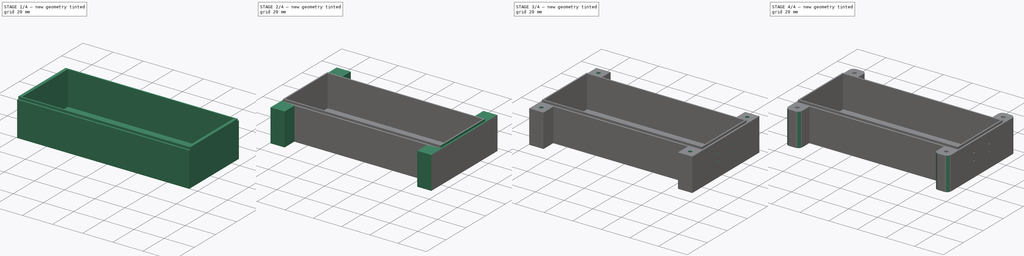
[diagram: build sequence overview — one tinted view per stage of 4, left to right]
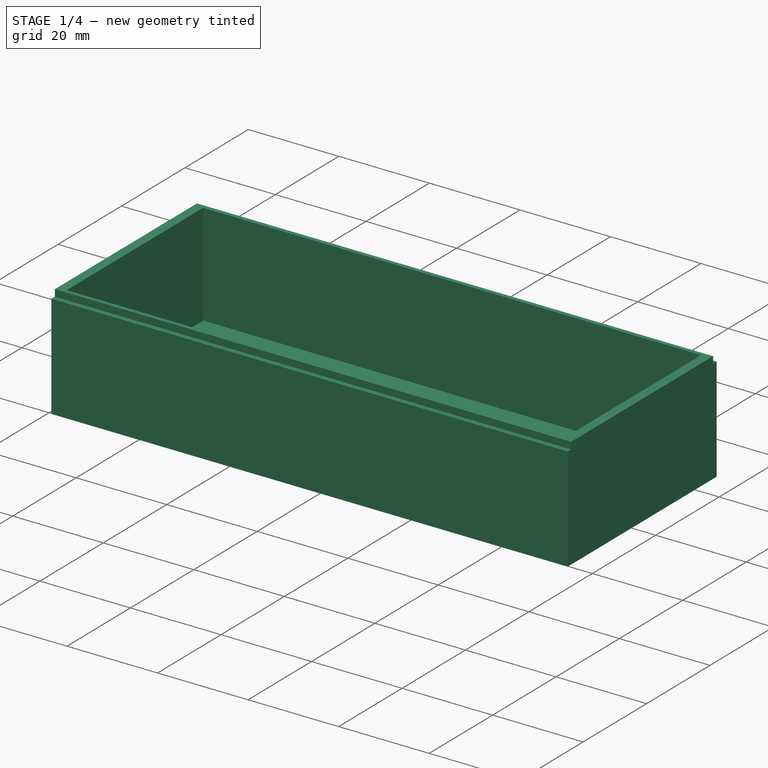
[diagram: stage 1 of 4 — iso view after this stage's code; geometry added in this stage tinted green]
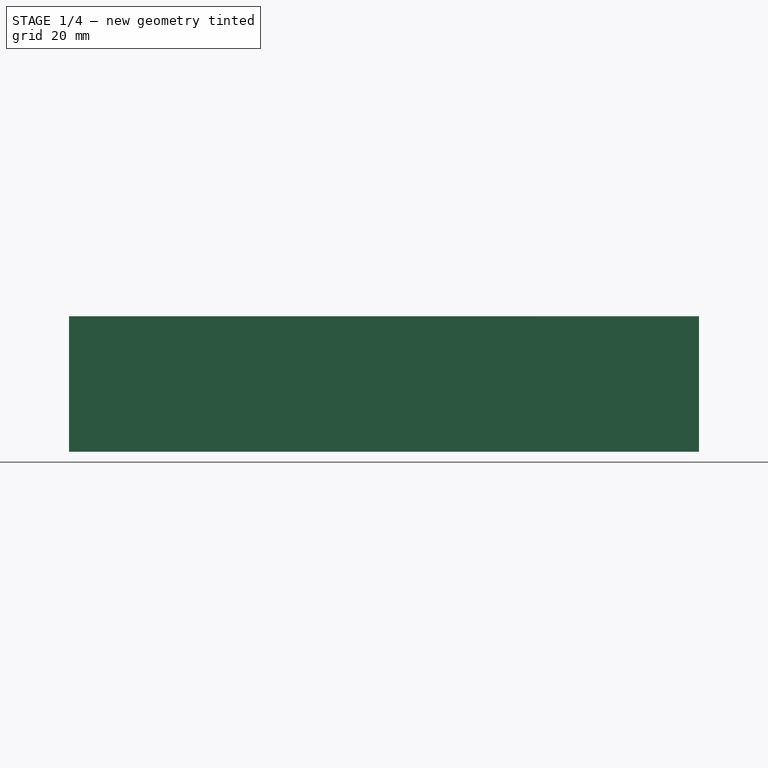
[diagram: stage 1 of 4 — front view after this stage's code; geometry added in this stage tinted green]
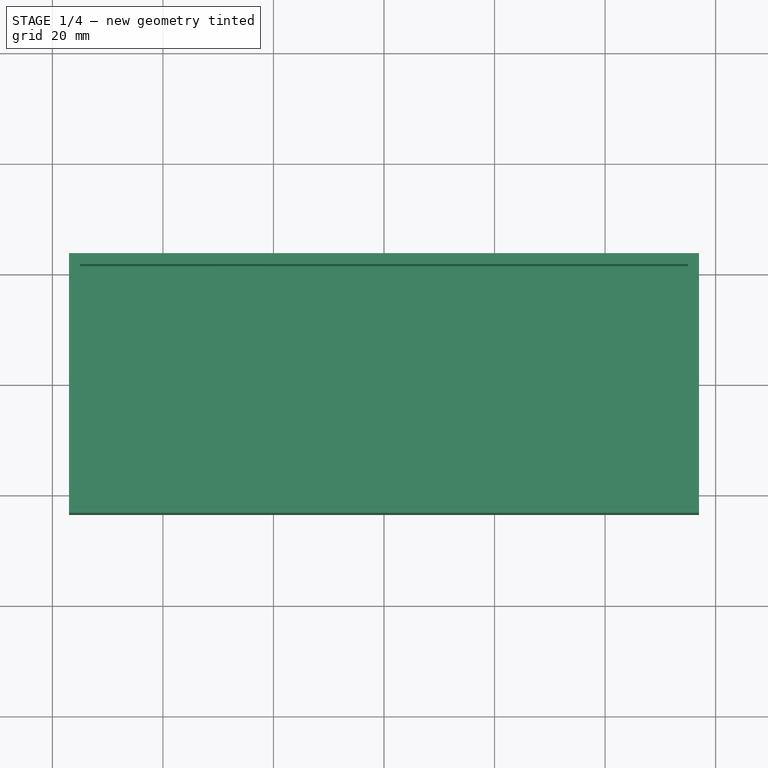
[diagram: stage 1 of 4 — top view after this stage's code; geometry added in this stage tinted green]
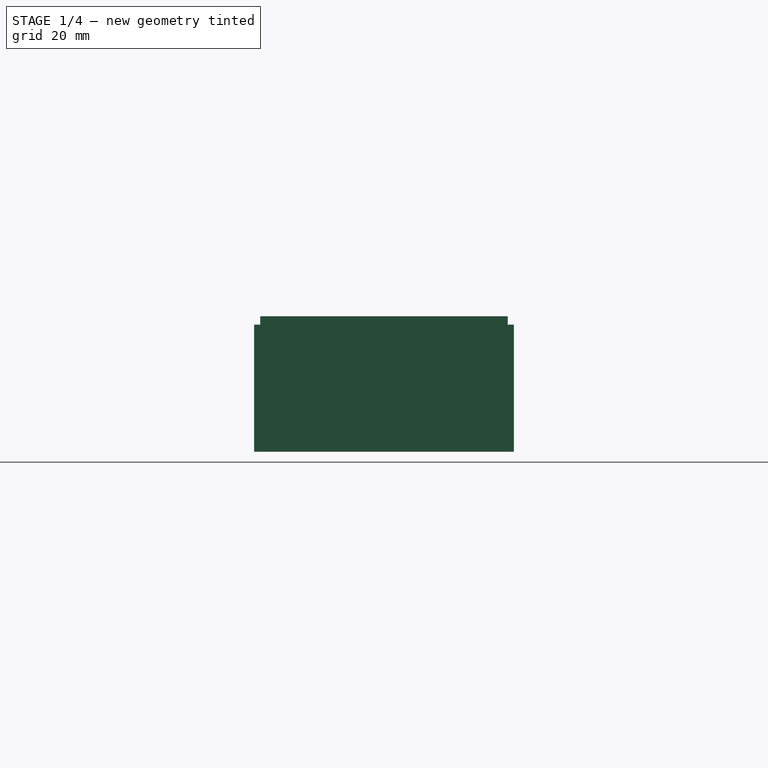
[diagram: stage 1 of 4 — right view after this stage's code; geometry added in this stage tinted green]
FCSTD DOCUMENT  (FreeCAD 1.0R38641 +678 (Git))
Label: BertheVario213_corps-v3
License: All rights reserved
LicenseURL: https://en.wikipedia.org/wiki/All_rights_reserved
objects: Sketcher::SketchObject×9, PartDesign::Pocket×5, PartDesign::Pad×4, PartDesign::Fillet×3, PartDesign::Thickness×1, PartDesign::Body×1
note: 58 computed .brp shape members not serialized (recipe doc carries the construction recipe); baked Part::Feature solids carry a one-line shape summary decoded from their .brp

FEATURE [Sketcher::SketchObject] Sketch  label="esquiise corps"
  ArcFitTolerance = 1e-06
  FullyConstrained = true
  MakeInternals = false
  sketch-geometry (4):
    g0: LineSegment StartX=-57 StartY=23.5 StartZ=0 EndX=-57 EndY=-23.5 EndZ=0
    g1: LineSegment StartX=-57 StartY=-23.5 StartZ=0 EndX=57 EndY=-23.5 EndZ=0
    g2: LineSegment StartX=57 StartY=-23.5 StartZ=0 EndX=57 EndY=23.5 EndZ=0
    g3: LineSegment StartX=57 StartY=23.5 StartZ=0 EndX=-57 EndY=23.5 EndZ=0
  constraints (11):
    c: Coincident(g0,g1)
    c: Coincident(g1,g2)
    c: Coincident(g2,g3)
    c: Coincident(g3,g0)
    c: Vertical(g0)
    c: Vertical(g2)
    c: Horizontal(g1)
    c: Horizontal(g3)
    c: DistanceY(g0,g0) = 47
    c: DistanceX(g3,g3) = 114
    c: Symmetric(g0,g2,g-1)
FEATURE [PartDesign::Pad] Pad  label="protrusion corps"
  Direction = (0,0,1)
  Length = 24.5
  Length2 = 10
  Profile = -> Sketch
  ReferenceAxis = -> Sketch [N_Axis]
  Refine = true
  Suppressed = false
  Type = 0
FEATURE [PartDesign::Thickness] Thickness  label="cavite corps"
  Base = -> Pad [Face6]
  BaseFeature = -> Pad
  Intersection = false
  Join = 0
  Mode = 0
  Refine = true
  Reversed = true
  SupportTransform = false
  Suppressed = false
  Value = 2
FEATURE [Sketcher::SketchObject] Sketch001  label="esquisse rebord long"
  ArcFitTolerance = 1e-06
  AttachmentSupport = -> [Thickness]
  ExternalGeometry = -> [Thickness]
  FullyConstrained = true
  MakeInternals = false
  MapMode = 5
  Placement = pos=(0,0,24.5) rot=(0,0,1;0rad)
  sketch-geometry (8):
    g0: LineSegment StartX=-57 StartY=-22.4 StartZ=0 EndX=-57 EndY=-23.5 EndZ=0
    g1: LineSegment StartX=-57 StartY=-23.5 StartZ=0 EndX=57 EndY=-23.5 EndZ=0
    g2: LineSegment StartX=57 StartY=-23.5 StartZ=0 EndX=57 EndY=-22.4 EndZ=0
    g3: LineSegment StartX=57 StartY=-22.4 StartZ=0 EndX=-57 EndY=-22.4 EndZ=0
    g4: LineSegment StartX=-57 StartY=23.5 StartZ=0 EndX=-57 EndY=22.4 EndZ=0
    g5: LineSegment StartX=-57 StartY=22.4 StartZ=0 EndX=57 EndY=22.4 EndZ=0
    g6: LineSegment StartX=57 StartY=22.4 StartZ=0 EndX=57 EndY=23.5 EndZ=0
    g7: LineSegment StartX=57 StartY=23.5 StartZ=0 EndX=-57 EndY=23.5 EndZ=0
  constraints (22):
    c: Coincident(g0,g1)
    c: Coincident(g1,g2)
    c: Coincident(g2,g3)
    c: Coincident(g3,g0)
    c: Vertical(g0)
    c: Vertical(g2)
    c: Horizontal(g1)
    c: Horizontal(g3)
    c: DistanceY(g2,g2) = 1.1
    c: PointOnObject(g0,g-6)
    c: Coincident(g1,g-5)
    c: Coincident(g4,g5)
    c: Coincident(g5,g6)
    c: Coincident(g6,g7)
    c: Coincident(g7,g4)
    c: Vertical(g4)
    c: Vertical(g6)
    c: Horizontal(g5)
    c: Horizontal(g7)
    c: Equal(g3,g5)
    c: Equal(g4,g0)
    c: Coincident(g-6,g4)
FEATURE [PartDesign::Pocket] Pocket  label="protrusion rebord long"
  BaseFeature = -> Thickness
  Direction = (0,0,-1)
  Length = 1.5
  Length2 = 5
  Profile = -> Sketch001
  ReferenceAxis = -> Sketch001 [N_Axis]
  Refine = true
  Suppressed = false
  Type = 0
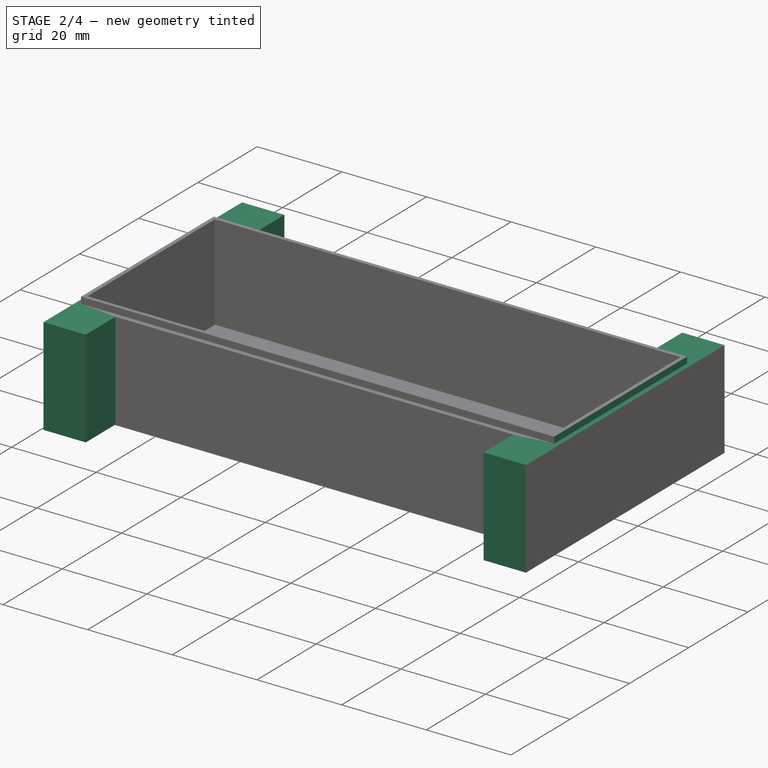
[diagram: stage 2 of 4 — iso view after this stage's code; geometry added in this stage tinted green]
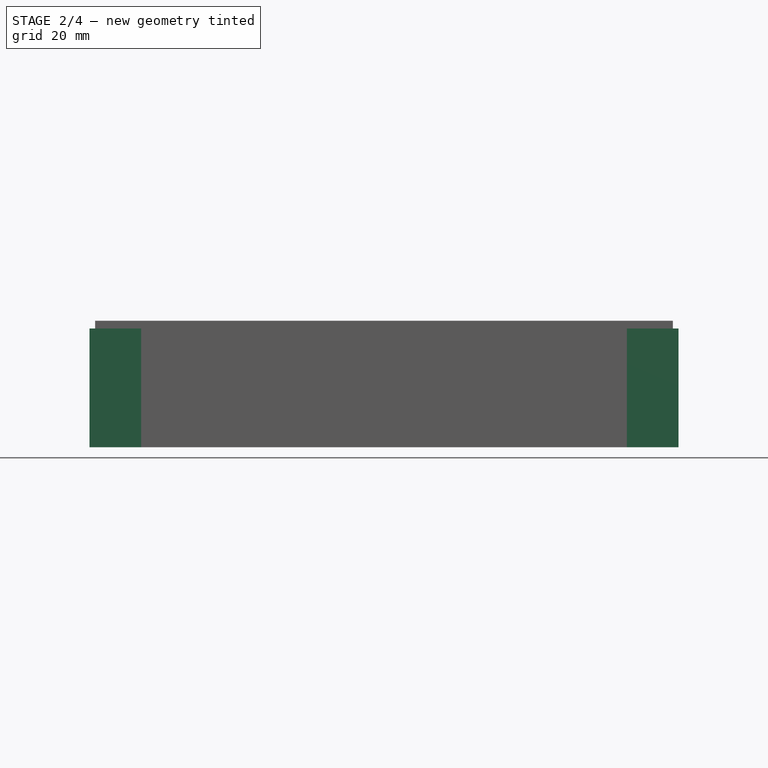
[diagram: stage 2 of 4 — front view after this stage's code; geometry added in this stage tinted green]
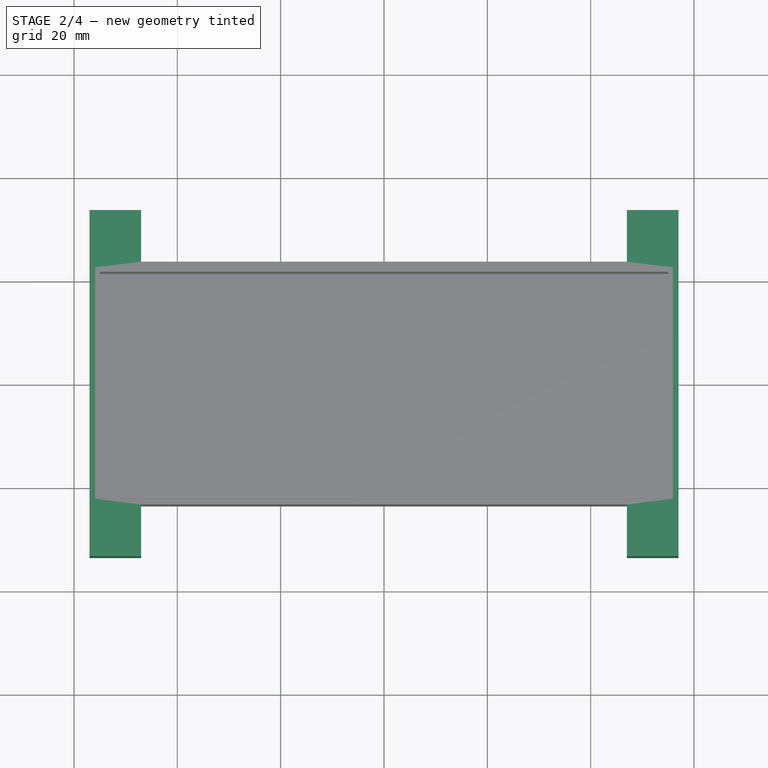
[diagram: stage 2 of 4 — top view after this stage's code; geometry added in this stage tinted green]
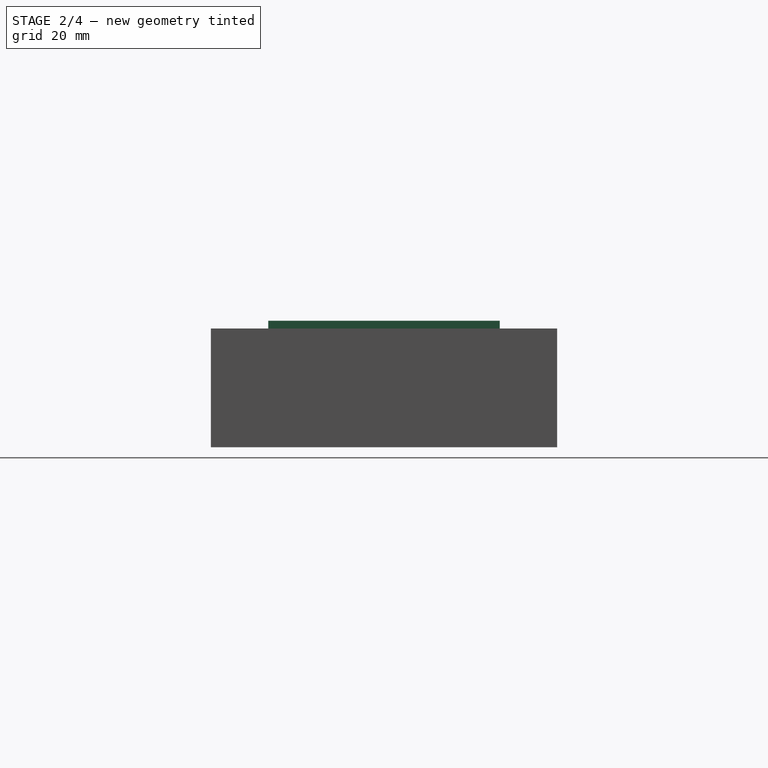
[diagram: stage 2 of 4 — right view after this stage's code; geometry added in this stage tinted green]
FEATURE [Sketcher::SketchObject] Sketch002  label="esquisse rebord court"
  ArcFitTolerance = 1e-06
  AttachmentSupport = -> [Pocket]
  ExternalGeometry = -> [Pocket]
  FullyConstrained = true
  MakeInternals = false
  MapMode = 5
  Placement = pos=(0,0,24.5) rot=(0,0,1;0rad)
  sketch-geometry (8):
    g0: LineSegment StartX=55.9 StartY=23.5 StartZ=0 EndX=55.9 EndY=-23.5 EndZ=0
    g1: LineSegment StartX=55.9 StartY=-23.5 StartZ=0 EndX=57 EndY=-23.5 EndZ=0
    g2: LineSegment StartX=57 StartY=-23.5 StartZ=0 EndX=57 EndY=23.5 EndZ=0
    g3: LineSegment StartX=57 StartY=23.5 StartZ=0 EndX=55.9 EndY=23.5 EndZ=0
    g4: LineSegment StartX=-57 StartY=23.5 StartZ=0 EndX=-57 EndY=-23.5 EndZ=0
    g5: LineSegment StartX=-57 StartY=-23.5 StartZ=0 EndX=-55.9 EndY=-23.5 EndZ=0
    g6: LineSegment StartX=-55.9 StartY=-23.5 StartZ=0 EndX=-55.9 EndY=23.5 EndZ=0
    g7: LineSegment StartX=-55.9 StartY=23.5 StartZ=0 EndX=-57 EndY=23.5 EndZ=0
  constraints (22):
    c: Coincident(g0,g1)
    c: Coincident(g1,g2)
    c: Coincident(g2,g3)
    c: Coincident(g3,g0)
    c: Vertical(g0)
    c: Vertical(g2)
    c: Horizontal(g1)
    c: Horizontal(g3)
    c: Coincident(g4,g5)
    c: Coincident(g5,g6)
    c: Coincident(g6,g7)
    c: Coincident(g7,g4)
    c: Vertical(g4)
    c: Vertical(g6)
    c: Horizontal(g5)
    c: Horizontal(g7)
    c: Equal(g7,g3)
    c: Equal(g2,g6)
    c: DistanceX(g3,g3) = 1.1
    c: DistanceY(g0,g0) = 47
    c: Coincident(g1,g-5)
    c: Coincident(g4,g-6)
FEATURE [PartDesign::Pocket] Pocket001  label="protrusion rebord court"
  BaseFeature = -> Pocket
  Direction = (0,0,-1)
  Length = 1.5
  Length2 = 5
  Profile = -> Sketch002
  ReferenceAxis = -> Sketch002 [N_Axis]
  Refine = true
  Suppressed = false
  Type = 0
FEATURE [Sketcher::SketchObject] Sketch003  label="esquisse embase vis 1-2"
  ArcFitTolerance = 1e-06
  AttachmentSupport = -> [Pocket001]
  ExternalGeometry = -> [Pocket001]
  FullyConstrained = true
  MakeInternals = false
  MapMode = 5
  Placement = pos=(0,23.5,0) rot=(0,0.707107,0.707107;3.14159rad)
  sketch-geometry (8):
    g0: LineSegment StartX=-57 StartY=23 StartZ=0 EndX=-57 EndY=0 EndZ=0
    g1: LineSegment StartX=-57 StartY=0 StartZ=0 EndX=-47 EndY=0 EndZ=0
    g2: LineSegment StartX=-47 StartY=0 StartZ=0 EndX=-47 EndY=23 EndZ=0
    g3: LineSegment StartX=-47 StartY=23 StartZ=0 EndX=-57 EndY=23 EndZ=0
    g4: LineSegment StartX=47 StartY=23 StartZ=0 EndX=47 EndY=0 EndZ=0
    g5: LineSegment StartX=47 StartY=0 StartZ=0 EndX=57 EndY=0 EndZ=0
    g6: LineSegment StartX=57 StartY=0 StartZ=0 EndX=57 EndY=23 EndZ=0
    g7: LineSegment StartX=57 StartY=23 StartZ=0 EndX=47 EndY=23 EndZ=0
  constraints (22):
    c: Coincident(g0,g1)
    c: Coincident(g1,g2)
    c: Coincident(g2,g3)
    c: Coincident(g3,g0)
    c: Vertical(g0)
    c: Vertical(g2)
    c: Horizontal(g1)
    c: Horizontal(g3)
    c: Coincident(g4,g5)
    c: Coincident(g5,g6)
    c: Coincident(g6,g7)
    c: Coincident(g7,g4)
    c: Vertical(g4)
    c: Vertical(g6)
    c: Horizontal(g5)
    c: Horizontal(g7)
    c: Coincident(g0,g-4)
    c: Coincident(g5,g-3)
    c: Equal(g7,g3)
    c: Equal(g2,g4)
    c: DistanceY(g4,g4) = 23
    c: DistanceX(g7,g7) = 10
FEATURE [PartDesign::Pad] Pad001  label="protrusion embase vis 1-2"
  BaseFeature = -> Pocket001
  Direction = (0,1,-2e-16)
  Length = 10
  Length2 = 10
  Profile = -> Sketch003
  ReferenceAxis = -> Sketch003 [N_Axis]
  Refine = true
  Suppressed = false
  Type = 0
FEATURE [Sketcher::SketchObject] Sketch004  label="esquisse embase vis 3-4"
  ArcFitTolerance = 1e-06
  AttachmentSupport = -> [Pad001]
  ExternalGeometry = -> [Pad001]
  FullyConstrained = true
  MakeInternals = false
  MapMode = 5
  Placement = pos=(0,-23.5,0) rot=(1,0,0;1.5708rad)
  sketch-geometry (8):
    g0: LineSegment StartX=-57 StartY=23 StartZ=0 EndX=-57 EndY=0 EndZ=0
    g1: LineSegment StartX=-57 StartY=0 StartZ=0 EndX=-47 EndY=0 EndZ=0
    g2: LineSegment StartX=-47 StartY=0 StartZ=0 EndX=-47 EndY=23 EndZ=0
    g3: LineSegment StartX=-47 StartY=23 StartZ=0 EndX=-57 EndY=23 EndZ=0
    g4: LineSegment StartX=47 StartY=23 StartZ=0 EndX=47 EndY=0 EndZ=0
    g5: LineSegment StartX=47 StartY=0 StartZ=0 EndX=57 EndY=0 EndZ=0
    g6: LineSegment StartX=57 StartY=0 StartZ=0 EndX=57 EndY=23 EndZ=0
    g7: LineSegment StartX=57 StartY=23 StartZ=0 EndX=47 EndY=23 EndZ=0
  constraints (22):
    c: Coincident(g0,g1)
    c: Coincident(g1,g2)
    c: Coincident(g2,g3)
    c: Coincident(g3,g0)
    c: Vertical(g0)
    c: Vertical(g2)
    c: Horizontal(g1)
    c: Horizontal(g3)
    c: Coincident(g4,g5)
    c: Coincident(g5,g6)
    c: Coincident(g6,g7)
    c: Coincident(g7,g4)
    c: Vertical(g4)
    c: Vertical(g6)
    c: Horizontal(g5)
    c: Horizontal(g7)
    c: Equal(g3,g7)
    c: Equal(g2,g4)
    c: Distance(g3,g3) = 10
    c: DistanceY(g2,g2) = 23
    c: Coincident(g0,g-4)
    c: Coincident(g5,g-3)
FEATURE [PartDesign::Pad] Pad002  label="protrusion embase vis 3-4"
  BaseFeature = -> Pad001
  Direction = (0,-1,2e-16)
  Length = 10
  Length2 = 10
  Profile = -> Sketch004
  ReferenceAxis = -> Sketch004 [N_Axis]
  Refine = true
  Suppressed = false
  Type = 0
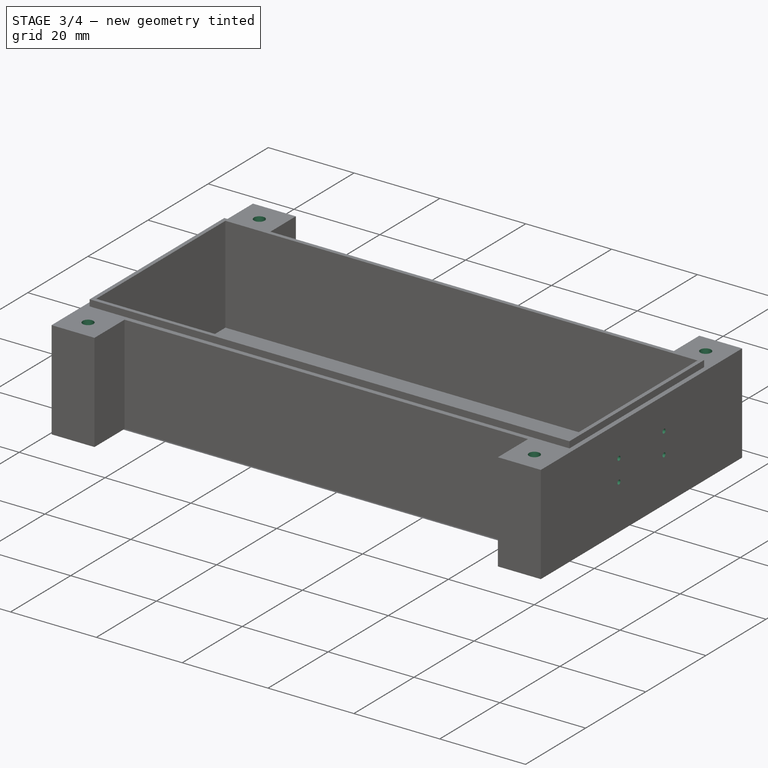
[diagram: stage 3 of 4 — iso view after this stage's code; geometry added in this stage tinted green]
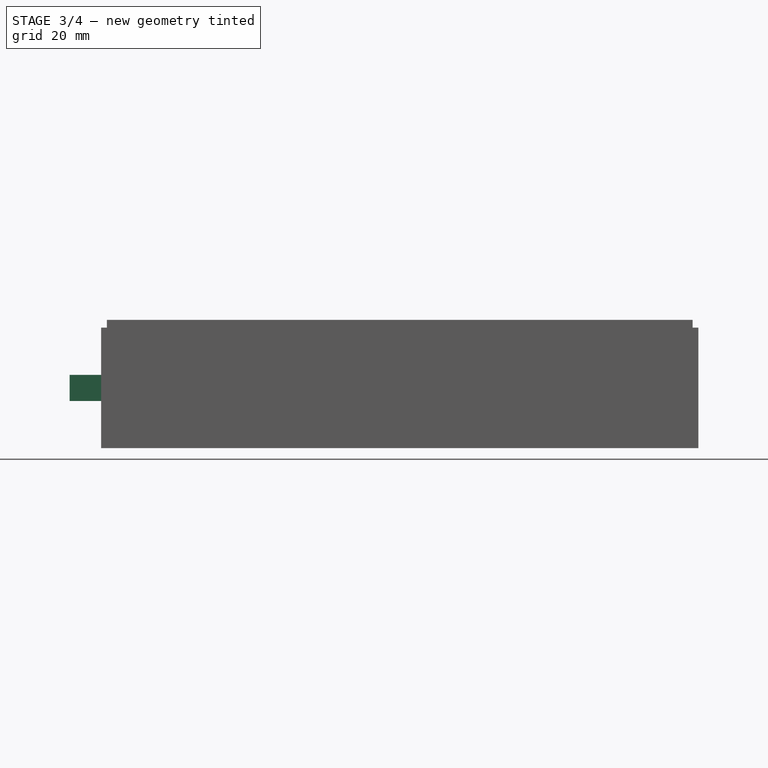
[diagram: stage 3 of 4 — front view after this stage's code; geometry added in this stage tinted green]
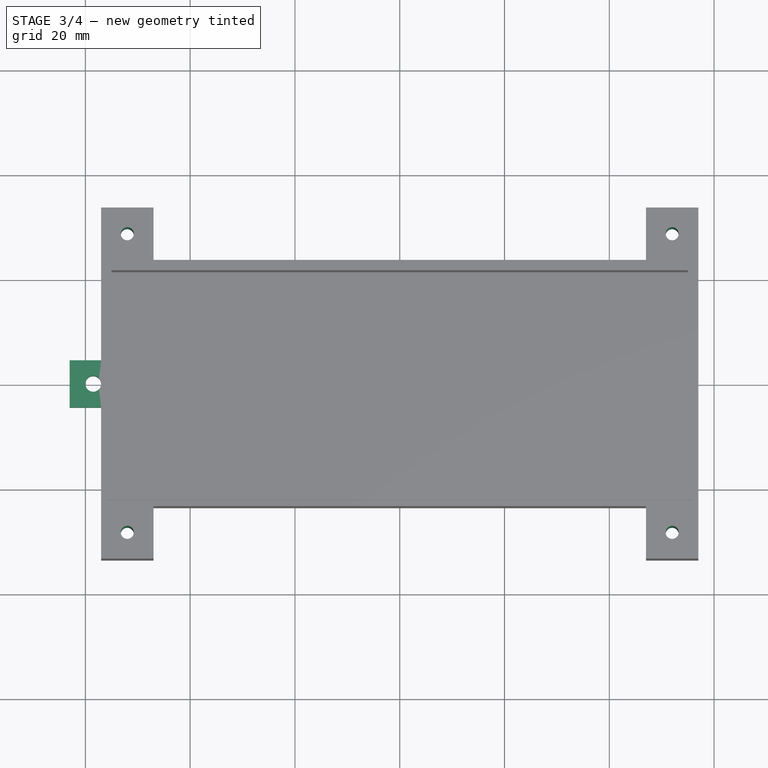
[diagram: stage 3 of 4 — top view after this stage's code; geometry added in this stage tinted green]
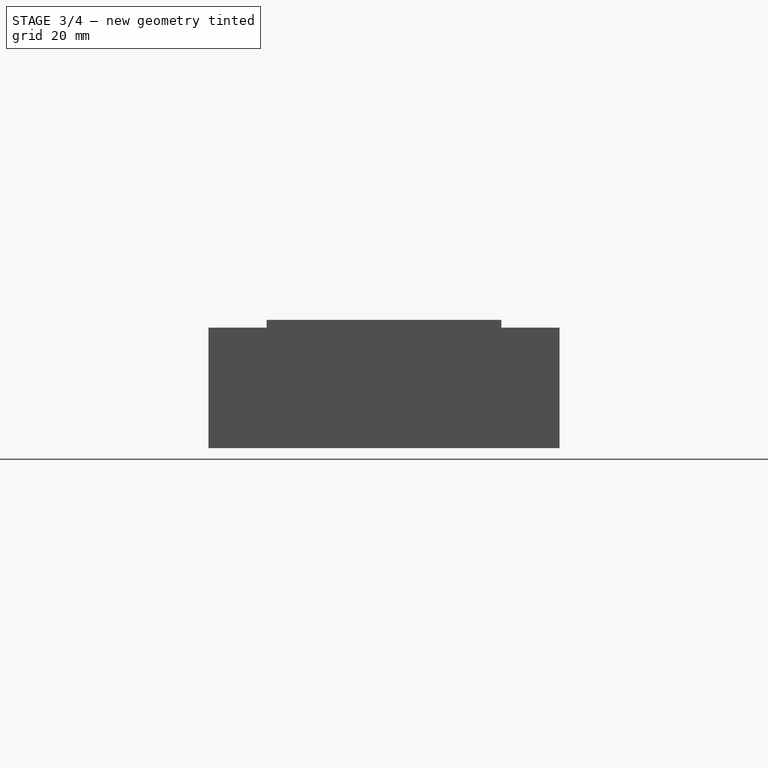
[diagram: stage 3 of 4 — right view after this stage's code; geometry added in this stage tinted green]
FEATURE [Sketcher::SketchObject] Sketch005  label="esquisse trou vis"
  ArcFitTolerance = 1e-06
  AttachmentSupport = -> [Pad002]
  ExternalGeometry = -> [Pad002]
  FullyConstrained = true
  MakeInternals = false
  MapMode = 5
  Placement = pos=(1.1263e-12,-2.3255e-12,23) rot=(0,0,1;0rad)
  sketch-geometry (4):
    g0: Circle CenterX=-52 CenterY=28.5 CenterZ=0 NormalX=0 NormalY=0 NormalZ=1 AngleXU=0 Radius=1.25
    g1: Circle CenterX=52 CenterY=28.5 CenterZ=0 NormalX=0 NormalY=0 NormalZ=1 AngleXU=0 Radius=1.25
    g2: Circle CenterX=52 CenterY=-28.5 CenterZ=0 NormalX=0 NormalY=0 NormalZ=1 AngleXU=0 Radius=1.25
    g3: Circle CenterX=-52 CenterY=-28.5 CenterZ=0 NormalX=0 NormalY=0 NormalZ=1 AngleXU=0 Radius=1.25
  constraints (8):
    c: Equal(g0,g1)
    c: Equal(g2,g3)
    c: Equal(g2,g1)
    c: Diameter(g0) = 2.5
    c: Symmetric(g-9,g-10,g1)
    c: Symmetric(g-7,g-8,g2)
    c: Symmetric(g-5,g-6,g3)
    c: Symmetric(g-4,g-3,g0)
FEATURE [PartDesign::Pocket] Pocket002  label="trou vis"
  BaseFeature = -> Pad002
  Direction = (-4.9e-14,1.011e-13,-1)
  Length = 23
  Length2 = 5
  Profile = -> Sketch005
  ReferenceAxis = -> Sketch005 [N_Axis]
  Refine = true
  Suppressed = false
  Type = 0
FEATURE [Sketcher::SketchObject] Sketch006  label="esquisse trou hp"
  ArcFitTolerance = 1e-06
  AttachmentSupport = -> [Pocket002]
  ExternalGeometry = -> [Pocket002]
  FullyConstrained = true
  MakeInternals = false
  MapMode = 5
  Placement = pos=(57,0,0) rot=(0.57735,0.57735,0.57735;2.0944rad)
  sketch-geometry (5):
    g0: Circle CenterX=7.5 CenterY=10.5 CenterZ=0 NormalX=0 NormalY=0 NormalZ=1 AngleXU=0 Radius=0.5
    g1: Circle CenterX=7.5 CenterY=15.5 CenterZ=0 NormalX=0 NormalY=0 NormalZ=1 AngleXU=0 Radius=0.5
    g2: Circle CenterX=-7.5 CenterY=10.5 CenterZ=0 NormalX=0 NormalY=0 NormalZ=1 AngleXU=0 Radius=0.5
    g3: Circle CenterX=-7.5 CenterY=15.5 CenterZ=0 NormalX=0 NormalY=0 NormalZ=1 AngleXU=0 Radius=0.5
    g4: GeomPoint X=0 Y=13 Z=0
  constraints (12):
    c: Equal(g3,g0)
    c: Equal(g0,g1)
    c: Equal(g1,g2)
    c: Diameter(g3) = 1
    c: DistanceX(g3,g1) = 15
    c: Symmetric(g1,g2,g4)
    c: Symmetric(g3,g0,g4)
    c: DistanceY(g-1,g4) = 13
    c: DistanceY(g0,g1) = 5
    c: DistanceX(g4,g-1) = 0
    c: DistanceX(g0,g1) = 0
    c: DistanceY(g0,g2) = 0
FEATURE [PartDesign::Pocket] Pocket003  label="trou hp"
  BaseFeature = -> Pocket002
  Direction = (-1,0,0)
  Length = 2
  Length2 = 5
  Profile = -> Sketch006
  ReferenceAxis = -> Sketch006 [N_Axis]
  Refine = true
  Suppressed = false
  Type = 0
FEATURE [Sketcher::SketchObject] Sketch007  label="esquisse attache"
  ArcFitTolerance = 1e-06
  AttachmentSupport = -> [Pocket003]
  ExternalGeometry = -> [Pocket003]
  FullyConstrained = true
  MakeInternals = false
  MapMode = 5
  Placement = pos=(-57,0,0) rot=(0.57735,-0.57735,-0.57735;2.0944rad)
  sketch-geometry (5):
    g0: LineSegment StartX=-4.5 StartY=14 StartZ=0 EndX=-4.5 EndY=9 EndZ=0
    g1: LineSegment StartX=-4.5 StartY=9 StartZ=0 EndX=4.5 EndY=9 EndZ=0
    g2: LineSegment StartX=4.5 StartY=9 StartZ=0 EndX=4.5 EndY=14 EndZ=0
    g3: LineSegment StartX=4.5 StartY=14 StartZ=0 EndX=-4.5 EndY=14 EndZ=0
    g4: GeomPoint X=9e-16 Y=11.5 Z=0
  constraints (12):
    c: Coincident(g0,g1)
    c: Coincident(g1,g2)
    c: Coincident(g2,g3)
    c: Coincident(g3,g0)
    c: Vertical(g0)
    c: Vertical(g2)
    c: Horizontal(g1)
    c: Horizontal(g3)
    c: Symmetric(g-3,g-4,g4)
    c: Symmetric(g0,g1,g4)
    c: DistanceY(g2,g2) = 5
    c: DistanceX(g3,g3) = 9
FEATURE [PartDesign::Pad] Pad003  label="protrusion attache"
  BaseFeature = -> Pocket003
  Direction = (-1,0,0)
  Length = 6
  Length2 = 10
  Profile = -> Sketch007
  ReferenceAxis = -> Sketch007 [N_Axis]
  Refine = true
  Suppressed = false
  Type = 0
FEATURE [Sketcher::SketchObject] Sketch009  label="equisse trou attache"
  ArcFitTolerance = 1e-06
  AttachmentSupport = -> [Pad003]
  ExternalGeometry = -> [Pad003]
  FullyConstrained = true
  MakeInternals = false
  MapMode = 5
  Placement = pos=(0,0,14) rot=(0,0,1;0rad)
  sketch-geometry (2):
    g0: GeomPoint X=-60 Y=6e-16 Z=0
    g1: Circle CenterX=-58.5 CenterY=0 CenterZ=0 NormalX=0 NormalY=0 NormalZ=1 AngleXU=0 Radius=1.5
  constraints (5):
    c: Symmetric(g-4,g-3,g0)
    c: Diameter(g1) = 3
    c: DistanceY(g1) = 0
    c: DistanceX(g-3) = -57
    c: DistanceX(g1,g-3) = 1.5
FEATURE [PartDesign::Pocket] Pocket004  label="trou attache"
  BaseFeature = -> Pad003
  Direction = (0,0,-1)
  Length = 5
  Length2 = 5
  Profile = -> Sketch009
  ReferenceAxis = -> Sketch009 [N_Axis]
  Refine = true
  Suppressed = false
  Type = 0
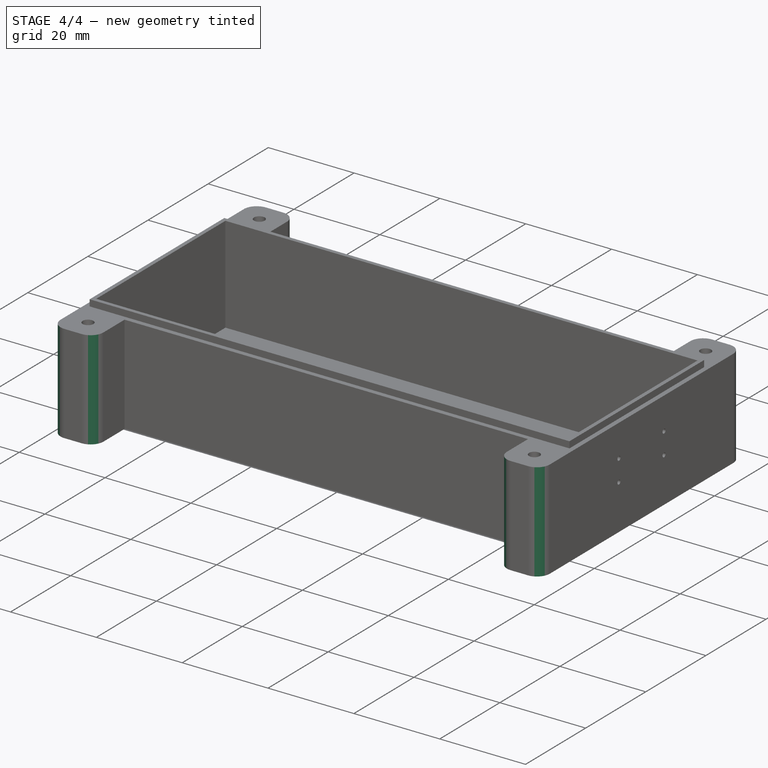
[diagram: stage 4 of 4 — iso view after this stage's code; geometry added in this stage tinted green]
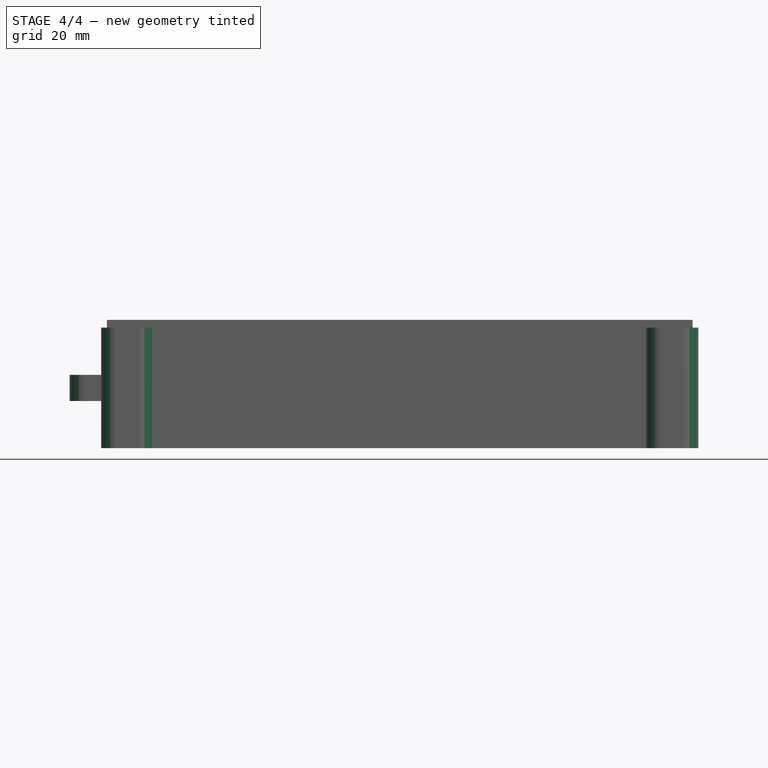
[diagram: stage 4 of 4 — front view after this stage's code; geometry added in this stage tinted green]
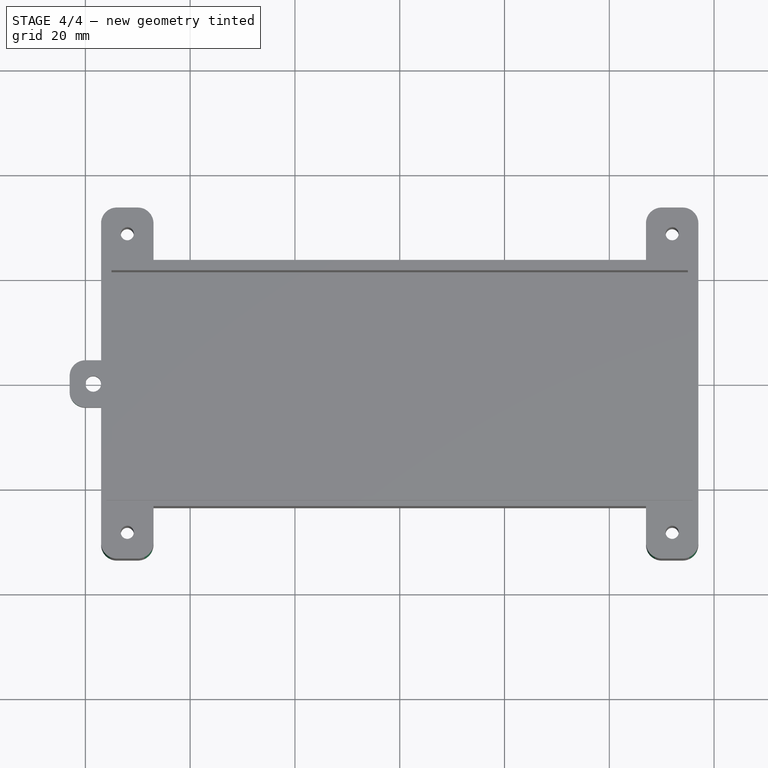
[diagram: stage 4 of 4 — top view after this stage's code; geometry added in this stage tinted green]
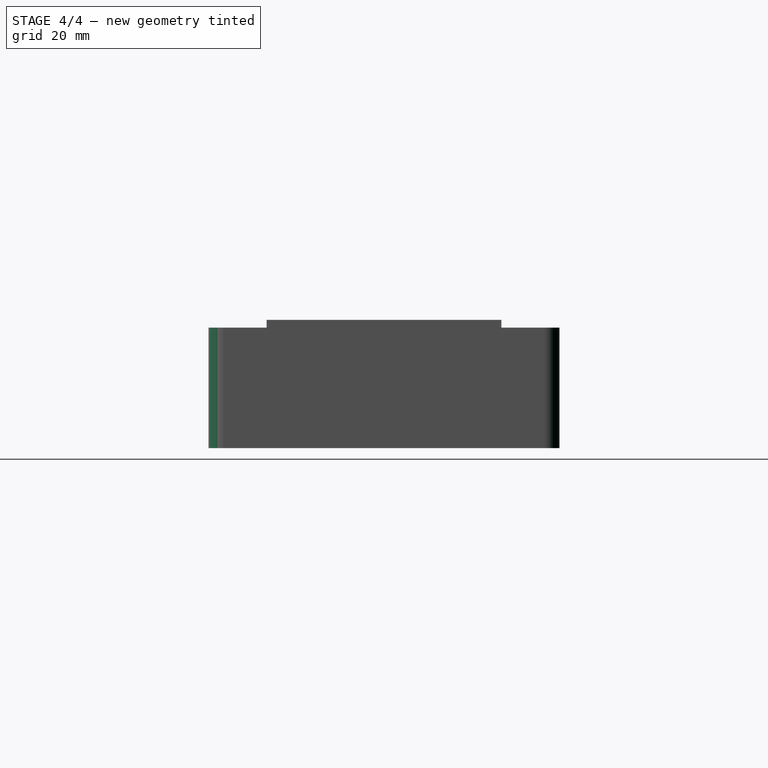
[diagram: stage 4 of 4 — right view after this stage's code; geometry added in this stage tinted green]
FEATURE [PartDesign::Fillet] Fillet  label="conge embase vis gauche"
  Base = -> Pocket004 [Edge23,Edge48,Edge58,Edge53]
  BaseFeature = -> Pocket004
  Radius = 3
  Refine = true
  SupportTransform = false
  Suppressed = false
  UseAllEdges = false
FEATURE [PartDesign::Fillet] Fillet001  label="conge attache"
  Base = -> Fillet [Edge82,Edge77]
  BaseFeature = -> Fillet
  Radius = 3
  Refine = true
  SupportTransform = false
  Suppressed = false
  UseAllEdges = false
FEATURE [PartDesign::Fillet] Fillet002  label="conge embase vis droit"
  Base = -> Fillet001 [Edge81,Edge87,Edge53,Edge16]
  BaseFeature = -> Fillet001
  Radius = 3
  Refine = true
  SupportTransform = false
  Suppressed = false
  UseAllEdges = false
FEATURE [PartDesign::Body] Body
  AllowCompound = false
  Group = -> [Sketch,Pad,Thickness,Sketch001,Pocket,Sketch002,Pocket001,Sketch003,Pad001,Sketch004,Pad002,Sketch005,Pocket002,Sketch006,Pocket003,Sketch007,Pad003,Sketch009,Pocket004,Fillet,Fillet001,Fillet002]
  Origin = -> Origin
  Tip = -> Fillet002
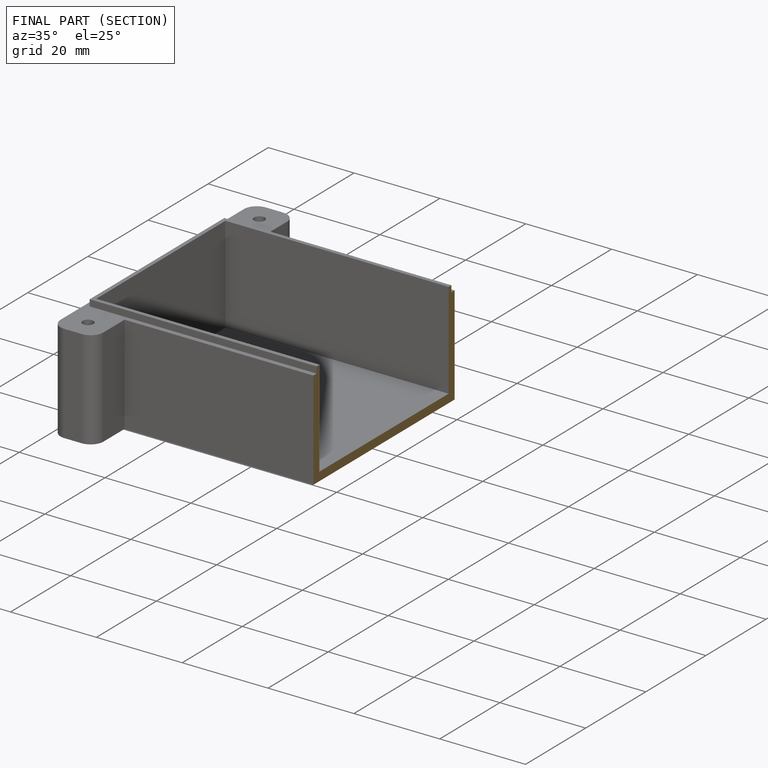
[diagram: finished part — half-section view (interior)]
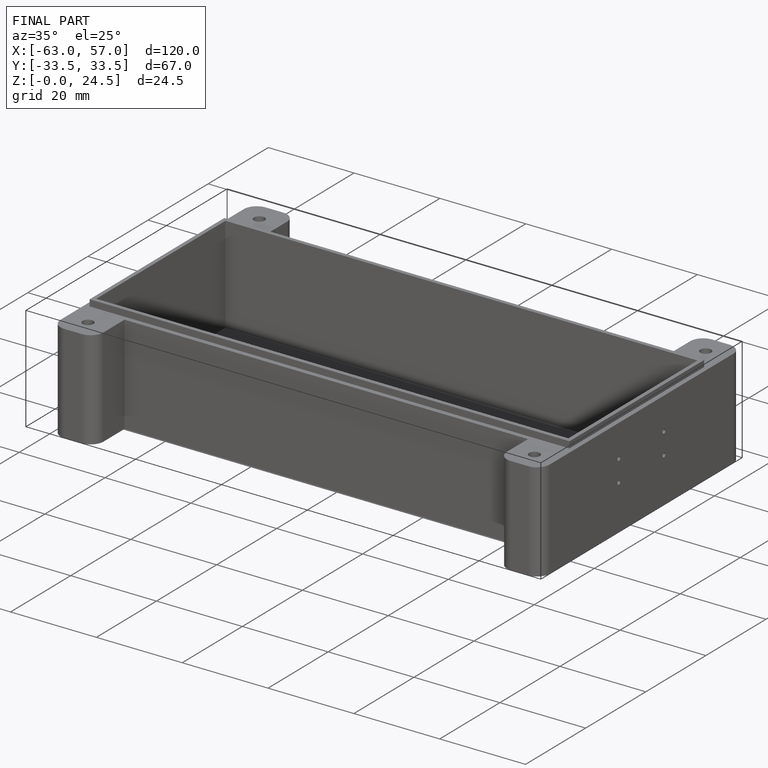
[diagram: finished part — iso view with bounding-box wireframe]
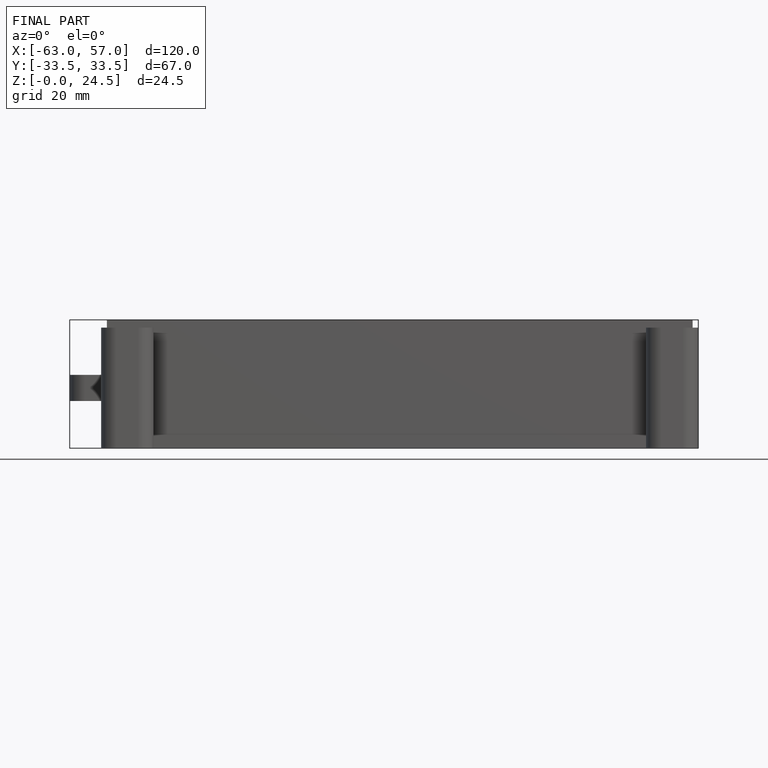
[diagram: finished part — front view with bounding-box wireframe]
